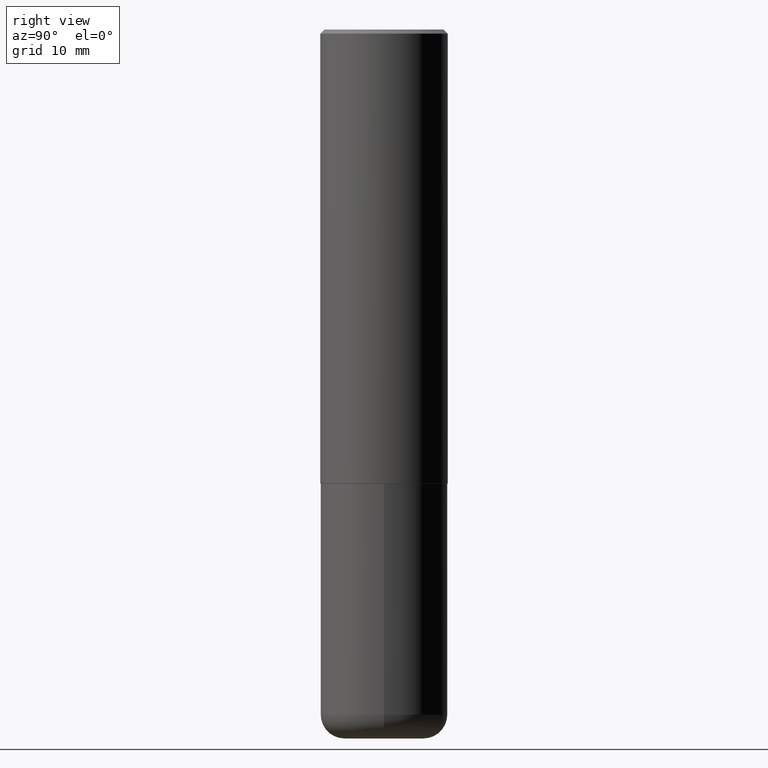
[diagram: clean part render]
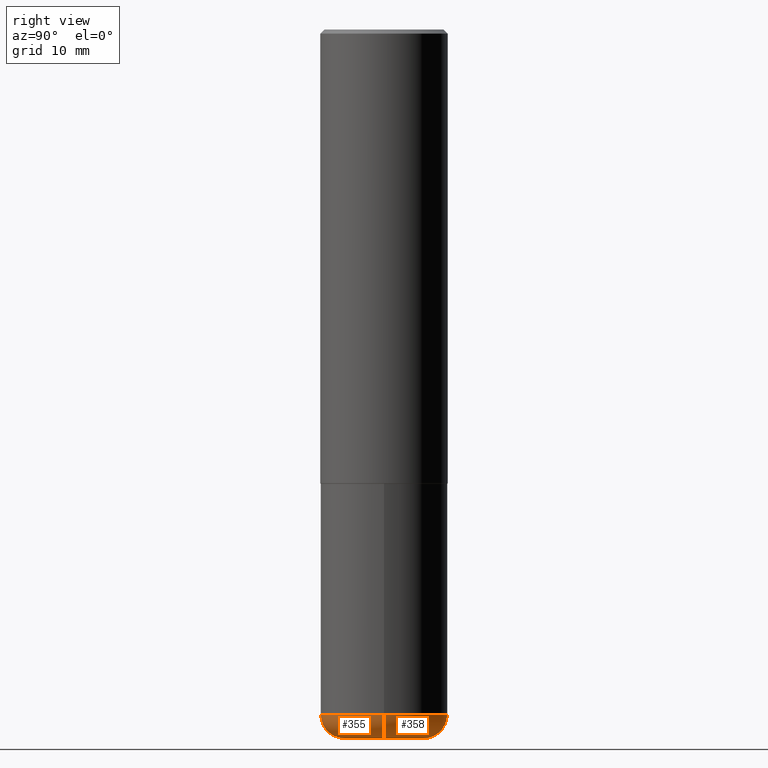
[diagram: same view with one multi-face feature highlighted, each face labeled with its STEP entity id]
A machine part, right view. The highlighted faces form ONE feature: a constant-radius fillet chain: 2 tangent blend faces with common blend radius 2.9997 mm. The faces share edges in the B-rep.
Their STEP definitions:
[1] entity #355 (Torus):
#15 = DIRECTION ( 'NONE',  ( 1.000000000000000000, -6.982962677686269866E-15, 0.000000000000000000 ) ) ;
#19 = TOROIDAL_SURFACE ( 'NONE', #25, 0.1968500000000000250, 0.1180999999999997468 ) ;
#22 = EDGE_CURVE ( 'NONE', #371, #73, #392, .T. ) ;
#24 = CIRCLE ( 'NONE', #274, 0.1180999999999997191 ) ;
#25 = AXIS2_PLACEMENT_3D ( 'NONE', #92, #233, #94 ) ;
#28 = EDGE_CURVE ( 'NONE', #371, #270, #24, .T. ) ;
#38 = DIRECTION ( 'NONE',  ( 1.000000000000000000, -6.982962677686267499E-15, 0.000000000000000000 ) ) ;
#68 = ORIENTED_EDGE ( 'NONE', *, *, #69, .F. ) ;
#69 = EDGE_CURVE ( 'NONE', #270, #361, #70, .T. ) ;
#70 = CIRCLE ( 'NONE', #368, 0.3149500000000000077 ) ;
#73 = VERTEX_POINT ( 'NONE', #400 ) ;
#86 = DIRECTION ( 'NONE',  ( -6.982962677686266711E-15, -1.000000000000000000, 3.491481338843145583E-15 ) ) ;
#92 = CARTESIAN_POINT ( 'NONE',  ( 8.279868283981634472E-29, -1.182145751705512057E-14, -3.385799999999999699 ) ) ;
#94 = DIRECTION ( 'NONE',  ( 1.000000000000000000, -6.982962677686263555E-15, 4.883557194083111780E-29 ) ) ;
#123 = ORIENTED_EDGE ( 'NONE', *, *, #337, .T. ) ;
#136 = DIRECTION ( 'NONE',  ( 7.105427357601001859E-15, 1.000000000000000000, -3.491481338843145583E-15 ) ) ;
#144 = EDGE_LOOP ( 'NONE', ( #175, #234, #123, #68 ) ) ;
#172 = CARTESIAN_POINT ( 'NONE',  ( -0.1968500000000000250, -1.020935062930371351E-14, -3.503899999999999348 ) ) ;
#175 = ORIENTED_EDGE ( 'NONE', *, *, #28, .F. ) ;
#210 = AXIS2_PLACEMENT_3D ( 'NONE', #354, #86, #387 ) ;
#212 = CARTESIAN_POINT ( 'NONE',  ( 8.568678149992098353E-29, -1.223380146317249628E-14, -3.503899999999999348 ) ) ;
#215 = AXIS2_PLACEMENT_3D ( 'NONE', #212, #341, #38 ) ;
#219 = DIRECTION ( 'NONE',  ( -2.445468806185136597E-29, 3.491481338843145583E-15, 1.000000000000000000 ) ) ;
#230 = CARTESIAN_POINT ( 'NONE',  ( -0.3149499999999998967, -9.583603170778684587E-15, -3.385799999999999699 ) ) ;
#233 = DIRECTION ( 'NONE',  ( -2.445468806185136597E-29, 3.491481338843145583E-15, 1.000000000000000000 ) ) ;
#234 = ORIENTED_EDGE ( 'NONE', *, *, #22, .T. ) ;
#240 = DIRECTION ( 'NONE',  ( -1.000000000000000000, 7.105427357601005014E-15, 0.000000000000000000 ) ) ;
#270 = VERTEX_POINT ( 'NONE', #230 ) ;
#274 = AXIS2_PLACEMENT_3D ( 'NONE', #336, #136, #240 ) ;
#286 = CARTESIAN_POINT ( 'NONE',  ( 8.279868283981634472E-29, -1.182145751705512057E-14, -3.385799999999999699 ) ) ;
#336 = CARTESIAN_POINT ( 'NONE',  ( -0.1968500000000000250, -1.042275414171136357E-14, -3.385799999999999699 ) ) ;
#337 = EDGE_CURVE ( 'NONE', #73, #361, #385, .T. ) ;
#341 = DIRECTION ( 'NONE',  ( -2.445468806185136597E-29, 3.491481338843145583E-15, 1.000000000000000000 ) ) ;
#354 = CARTESIAN_POINT ( 'NONE',  ( 0.1968500000000000250, -1.319605372015766376E-14, -3.385799999999999699 ) ) ;
#355 = ADVANCED_FACE ( 'NONE', ( #390 ), #19, .T. ) ;
#361 = VERTEX_POINT ( 'NONE', #416 ) ;
#368 = AXIS2_PLACEMENT_3D ( 'NONE', #286, #219, #15 ) ;
#371 = VERTEX_POINT ( 'NONE', #172 ) ;
#385 = CIRCLE ( 'NONE', #210, 0.1180999999999997191 ) ;
#387 = DIRECTION ( 'NONE',  ( 1.000000000000000000, -6.982962677686273021E-15, 0.000000000000000000 ) ) ;
#390 = FACE_OUTER_BOUND ( 'NONE', #144, .T. ) ;
#392 = CIRCLE ( 'NONE', #215, 0.1968500000000000250 ) ;
#400 = CARTESIAN_POINT ( 'NONE',  ( 0.1968500000000000250, -1.360839766627503789E-14, -3.503899999999999348 ) ) ;
#416 = CARTESIAN_POINT ( 'NONE',  ( 0.3149499999999998967, -1.402074161239241202E-14, -3.385799999999999699 ) ) ;
[2] entity #358 (Torus):
#9 = ORIENTED_EDGE ( 'NONE', *, *, #337, .F. ) ;
#24 = CIRCLE ( 'NONE', #274, 0.1180999999999997191 ) ;
#28 = EDGE_CURVE ( 'NONE', #371, #270, #24, .T. ) ;
#73 = VERTEX_POINT ( 'NONE', #400 ) ;
#86 = DIRECTION ( 'NONE',  ( -6.982962677686266711E-15, -1.000000000000000000, 3.491481338843145583E-15 ) ) ;
#90 = AXIS2_PLACEMENT_3D ( 'NONE', #353, #410, #408 ) ;
#131 = AXIS2_PLACEMENT_3D ( 'NONE', #214, #375, #317 ) ;
#134 = EDGE_CURVE ( 'NONE', #361, #270, #275, .T. ) ;
#136 = DIRECTION ( 'NONE',  ( 7.105427357601001859E-15, 1.000000000000000000, -3.491481338843145583E-15 ) ) ;
#172 = CARTESIAN_POINT ( 'NONE',  ( -0.1968500000000000250, -1.020935062930371351E-14, -3.503899999999999348 ) ) ;
#210 = AXIS2_PLACEMENT_3D ( 'NONE', #354, #86, #387 ) ;
#214 = CARTESIAN_POINT ( 'NONE',  ( 8.279868283981634472E-29, -1.182145751705512057E-14, -3.385799999999999699 ) ) ;
#229 = CIRCLE ( 'NONE', #90, 0.1968500000000000250 ) ;
#230 = CARTESIAN_POINT ( 'NONE',  ( -0.3149499999999998967, -9.583603170778684587E-15, -3.385799999999999699 ) ) ;
#235 = CARTESIAN_POINT ( 'NONE',  ( 8.279868283981634472E-29, -1.182145751705512057E-14, -3.385799999999999699 ) ) ;
#240 = DIRECTION ( 'NONE',  ( -1.000000000000000000, 7.105427357601005014E-15, 0.000000000000000000 ) ) ;
#241 = EDGE_CURVE ( 'NONE', #73, #371, #229, .T. ) ;
#270 = VERTEX_POINT ( 'NONE', #230 ) ;
#274 = AXIS2_PLACEMENT_3D ( 'NONE', #336, #136, #240 ) ;
#275 = CIRCLE ( 'NONE', #131, 0.3149500000000000077 ) ;
#317 = DIRECTION ( 'NONE',  ( 1.000000000000000000, -6.982962677686269866E-15, 0.000000000000000000 ) ) ;
#320 = TOROIDAL_SURFACE ( 'NONE', #369, 0.1968500000000000250, 0.1180999999999997468 ) ;
#324 = FACE_OUTER_BOUND ( 'NONE', #366, .T. ) ;
#331 = DIRECTION ( 'NONE',  ( -2.445468806185136597E-29, 3.491481338843145583E-15, 1.000000000000000000 ) ) ;
#335 = ORIENTED_EDGE ( 'NONE', *, *, #28, .T. ) ;
#336 = CARTESIAN_POINT ( 'NONE',  ( -0.1968500000000000250, -1.042275414171136357E-14, -3.385799999999999699 ) ) ;
#337 = EDGE_CURVE ( 'NONE', #73, #361, #385, .T. ) ;
#353 = CARTESIAN_POINT ( 'NONE',  ( 8.568678149992098353E-29, -1.223380146317249628E-14, -3.503899999999999348 ) ) ;
#354 = CARTESIAN_POINT ( 'NONE',  ( 0.1968500000000000250, -1.319605372015766376E-14, -3.385799999999999699 ) ) ;
#358 = ADVANCED_FACE ( 'NONE', ( #324 ), #320, .T. ) ;
#361 = VERTEX_POINT ( 'NONE', #416 ) ;
#366 = EDGE_LOOP ( 'NONE', ( #370, #335, #394, #9 ) ) ;
#369 = AXIS2_PLACEMENT_3D ( 'NONE', #235, #331, #380 ) ;
#370 = ORIENTED_EDGE ( 'NONE', *, *, #241, .T. ) ;
#371 = VERTEX_POINT ( 'NONE', #172 ) ;
#375 = DIRECTION ( 'NONE',  ( -2.445468806185136597E-29, 3.491481338843145583E-15, 1.000000000000000000 ) ) ;
#380 = DIRECTION ( 'NONE',  ( 1.000000000000000000, -6.982962677686263555E-15, 4.883557194083111780E-29 ) ) ;
#385 = CIRCLE ( 'NONE', #210, 0.1180999999999997191 ) ;
#387 = DIRECTION ( 'NONE',  ( 1.000000000000000000, -6.982962677686273021E-15, 0.000000000000000000 ) ) ;
#394 = ORIENTED_EDGE ( 'NONE', *, *, #134, .F. ) ;
#400 = CARTESIAN_POINT ( 'NONE',  ( 0.1968500000000000250, -1.360839766627503789E-14, -3.503899999999999348 ) ) ;
#408 = DIRECTION ( 'NONE',  ( 1.000000000000000000, -6.982962677686267499E-15, 0.000000000000000000 ) ) ;
#410 = DIRECTION ( 'NONE',  ( -2.445468806185136597E-29, 3.491481338843145583E-15, 1.000000000000000000 ) ) ;
#416 = CARTESIAN_POINT ( 'NONE',  ( 0.3149499999999998967, -1.402074161239241202E-14, -3.385799999999999699 ) ) ;